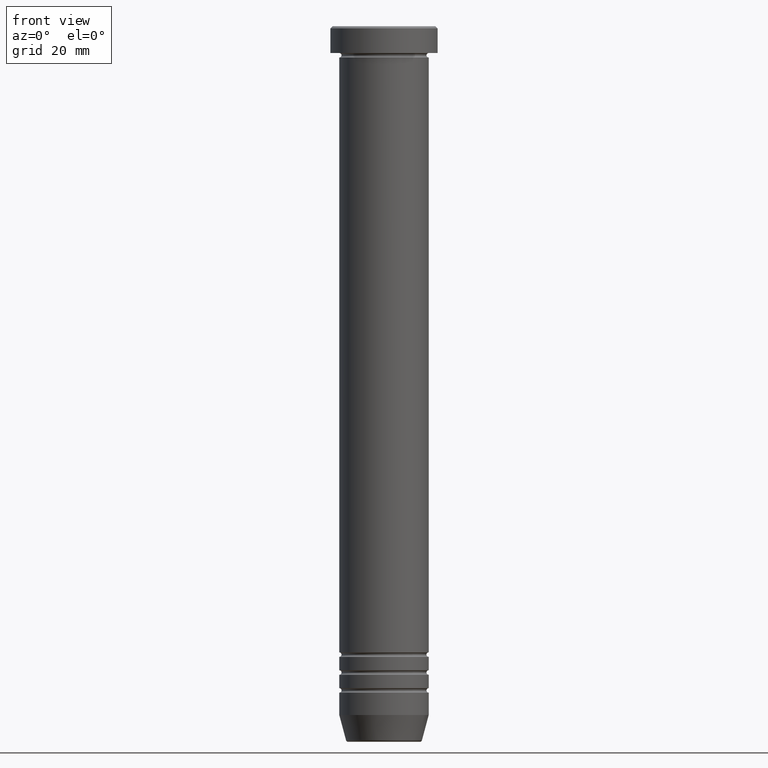
[diagram: clean part render]
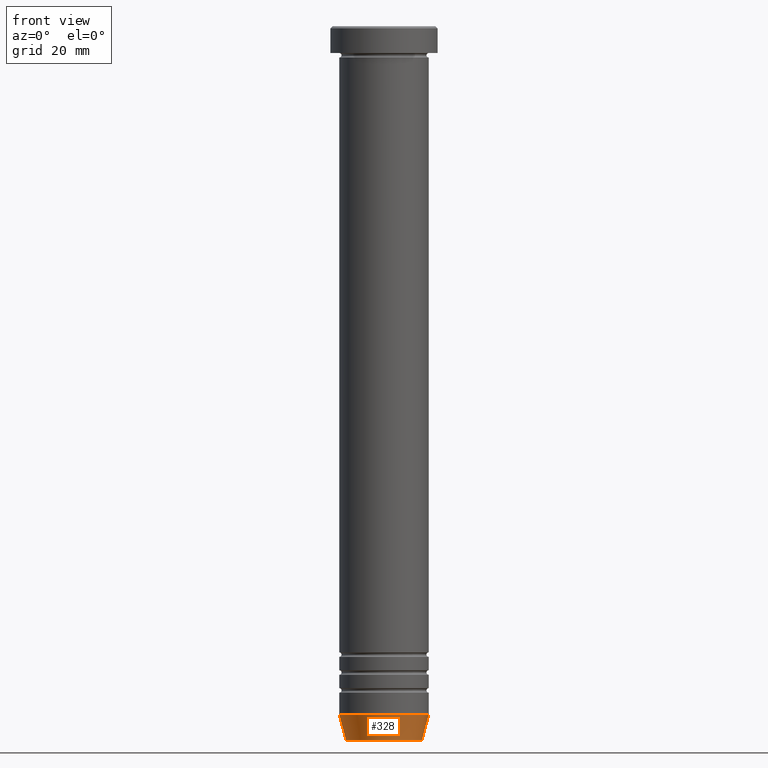
[diagram: same view with one face highlighted and labeled with its STEP entity id]
A machine part, front view. The second image highlights one B-rep face of the part: STEP entity #328.
In plain terms, the highlighted conical surface has half-angle 15 deg.
Its self-contained STEP definition (entity closure, byte-faithful):
#15 = CIRCLE ( 'NONE', #654, 10.00000000000000000 ) ;
#58 = CARTESIAN_POINT ( 'NONE',  ( 10.00000000000000000, 0.000000000000000000, -154.0000000000000000 ) ) ;
#69 = AXIS2_PLACEMENT_3D ( 'NONE', #403, #733, #827 ) ;
#70 = EDGE_LOOP ( 'NONE', ( #201, #664, #900, #709 ) ) ;
#75 = DIRECTION ( 'NONE',  ( -0.2588190451025215166, 3.169619151431774802E-17, 0.9659258262890679791 ) ) ;
#144 = CIRCLE ( 'NONE', #397, 8.491604264568300309 ) ;
#199 = CARTESIAN_POINT ( 'NONE',  ( -8.491604264568300309, 1.132284198685155598E-15, -159.6294095225512990 ) ) ;
#201 = ORIENTED_EDGE ( 'NONE', *, *, #657, .F. ) ;
#204 = CONICAL_SURFACE ( 'NONE', #69, 8.392304845413249836, 0.2617993877991502960 ) ;
#218 = LINE ( 'NONE', #231, #846 ) ;
#231 = CARTESIAN_POINT ( 'NONE',  ( -8.392304845413249836, 1.027760926640415931E-15, -160.0000000000000284 ) ) ;
#244 = VERTEX_POINT ( 'NONE', #949 ) ;
#308 = CARTESIAN_POINT ( 'NONE',  ( 0.000000000000000000, 0.000000000000000000, -159.6294095225512990 ) ) ;
#328 = ADVANCED_FACE ( 'NONE', ( #881 ), #204, .T. ) ;
#386 = DIRECTION ( 'NONE',  ( 0.2588190451025215166, 0.000000000000000000, 0.9659258262890679791 ) ) ;
#389 = LINE ( 'NONE', #779, #553 ) ;
#391 = VERTEX_POINT ( 'NONE', #525 ) ;
#397 = AXIS2_PLACEMENT_3D ( 'NONE', #308, #633, #867 ) ;
#403 = CARTESIAN_POINT ( 'NONE',  ( 0.000000000000000000, 0.000000000000000000, -160.0000000000000284 ) ) ;
#408 = VERTEX_POINT ( 'NONE', #58 ) ;
#409 = EDGE_CURVE ( 'NONE', #391, #408, #389, .T. ) ;
#507 = EDGE_CURVE ( 'NONE', #244, #408, #15, .T. ) ;
#525 = CARTESIAN_POINT ( 'NONE',  ( 8.491604264568300309, 0.000000000000000000, -159.6294095225512990 ) ) ;
#531 = DIRECTION ( 'NONE',  ( -0.000000000000000000, -0.000000000000000000, 1.000000000000000000 ) ) ;
#553 = VECTOR ( 'NONE', #386, 1000.000000000000114 ) ;
#633 = DIRECTION ( 'NONE',  ( -0.000000000000000000, -0.000000000000000000, 1.000000000000000000 ) ) ;
#654 = AXIS2_PLACEMENT_3D ( 'NONE', #698, #531, #708 ) ;
#657 = EDGE_CURVE ( 'NONE', #1034, #244, #218, .T. ) ;
#664 = ORIENTED_EDGE ( 'NONE', *, *, #756, .T. ) ;
#698 = CARTESIAN_POINT ( 'NONE',  ( 0.000000000000000000, 0.000000000000000000, -154.0000000000000000 ) ) ;
#708 = DIRECTION ( 'NONE',  ( 1.000000000000000000, 0.000000000000000000, 0.000000000000000000 ) ) ;
#709 = ORIENTED_EDGE ( 'NONE', *, *, #507, .F. ) ;
#733 = DIRECTION ( 'NONE',  ( -0.000000000000000000, -0.000000000000000000, 1.000000000000000000 ) ) ;
#756 = EDGE_CURVE ( 'NONE', #1034, #391, #144, .T. ) ;
#779 = CARTESIAN_POINT ( 'NONE',  ( 8.392304845413249836, 0.000000000000000000, -160.0000000000000284 ) ) ;
#827 = DIRECTION ( 'NONE',  ( 1.000000000000000000, 0.000000000000000000, 0.000000000000000000 ) ) ;
#846 = VECTOR ( 'NONE', #75, 1000.000000000000114 ) ;
#867 = DIRECTION ( 'NONE',  ( -1.000000000000000000, 0.000000000000000000, 0.000000000000000000 ) ) ;
#881 = FACE_OUTER_BOUND ( 'NONE', #70, .T. ) ;
#900 = ORIENTED_EDGE ( 'NONE', *, *, #409, .T. ) ;
#949 = CARTESIAN_POINT ( 'NONE',  ( -10.00000000000000000, 1.224646799147353256E-15, -154.0000000000000000 ) ) ;
#1034 = VERTEX_POINT ( 'NONE', #199 ) ;